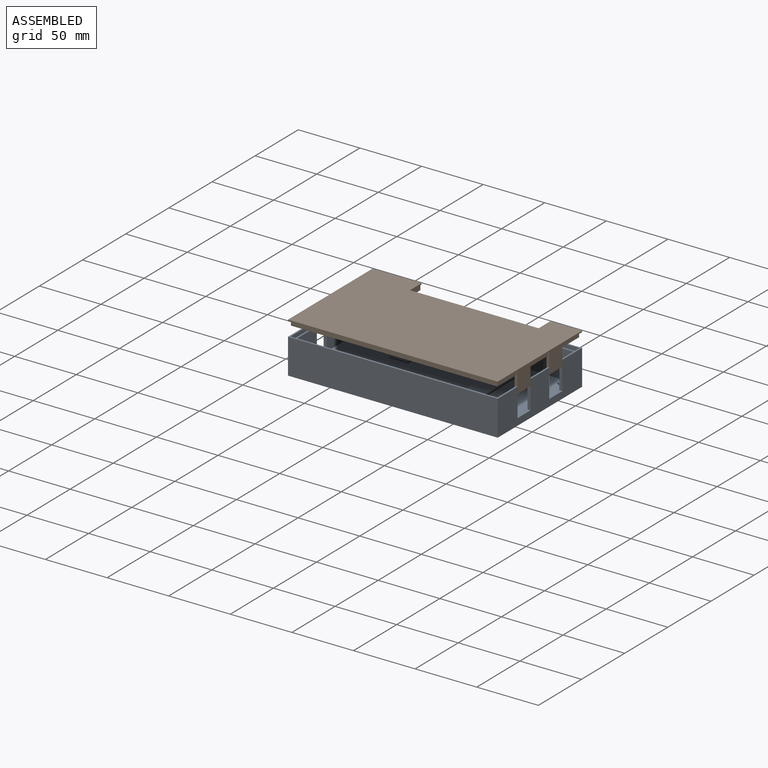
[diagram: assembled view]
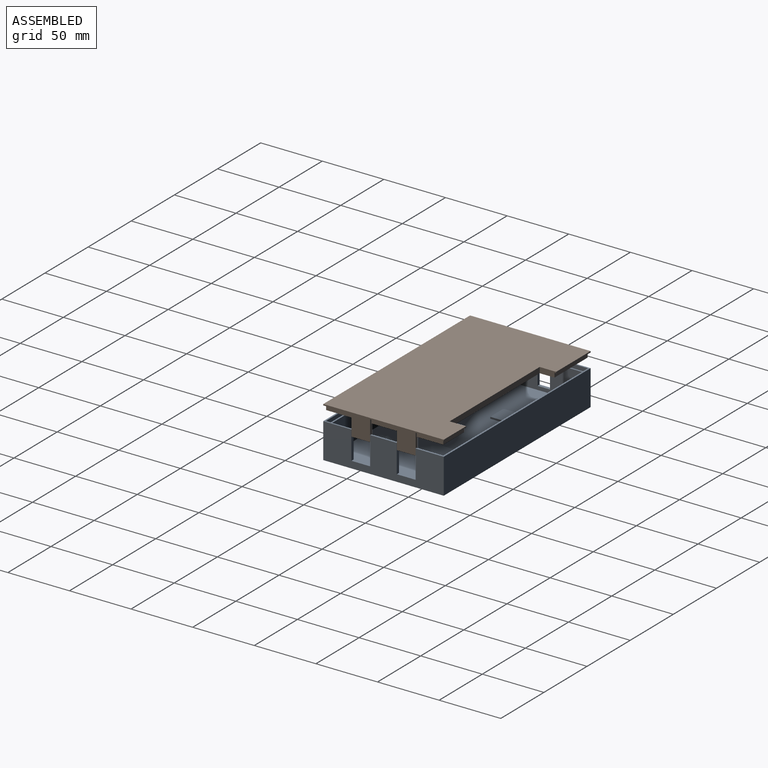
[diagram: assembled view, second angle]
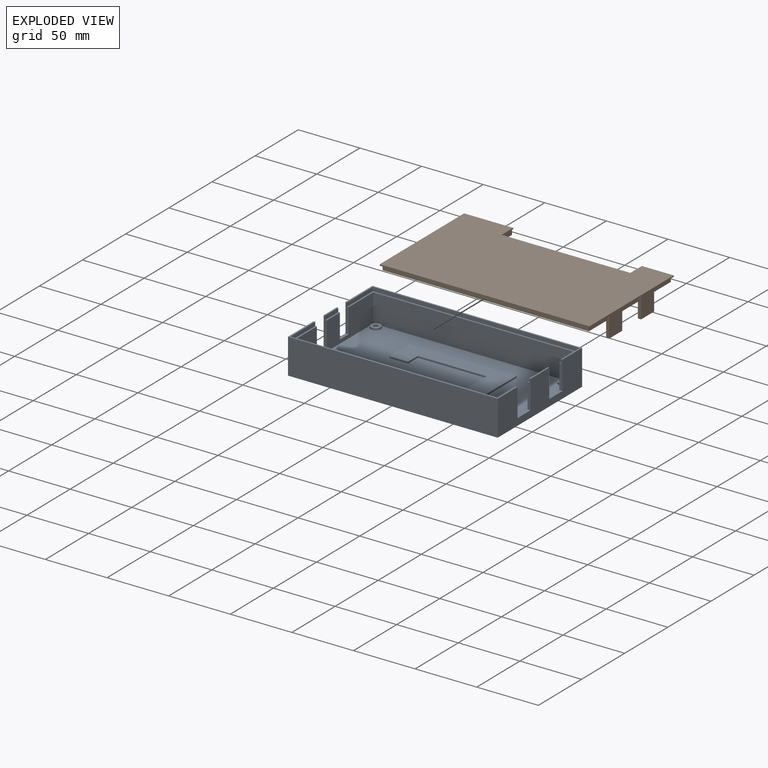
[diagram: exploded view]
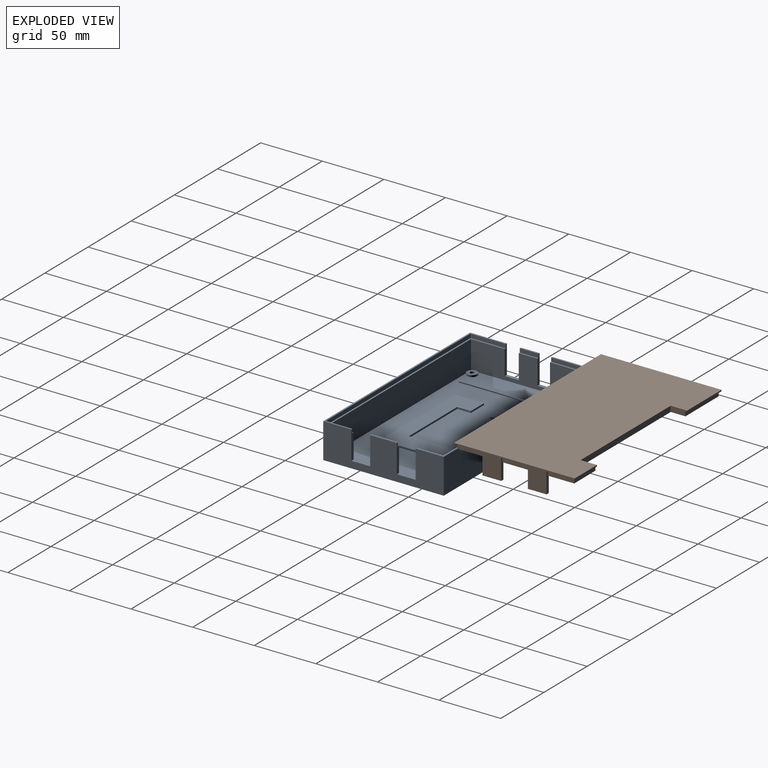
[diagram: exploded view, second angle]
ASSEMBLY  parts=2 mates=2
PART A: 67 faces, bbox 170.2x97.8x28.5 mm
  f0: plane 21.6x1.27mm, normal (0,0,1), area 27.4mm2, adj f5,f8,f14,f56
  f1: plane 92.71x22.83mm, normal (-1,0,0), area 1513.3mm2, adj f3,f4,f5,f6,f7,f8,f17,f53
  f2: plane 92.71x22.83mm, normal (1,0,0), area 1688.4mm2, adj f3,f4,f17,f47,f48,f49,f50,f51
  f3: plane 165.1x22.83mm, normal (0,1,0), area 3770mm2, adj f1,f2,f17,f57
  f4: plane 165.1x22.83mm, normal (0,-1,0), area 3770mm2, adj f1,f2,f17,f61
  f5: plane 22.98x2.54mm, normal (0,1,0), area 54.3mm2, adj f0,f1,f14,f53,f55,f56
  f6: plane 22.98x2.54mm, normal (0,-1,0), area 54.3mm2, adj f1,f9,f14,f53,f61,f62
  f7: plane 22.98x2.54mm, normal (0,1,0), area 54.3mm2, adj f1,f11,f14,f54,f57,f58
  f8: plane 22.98x2.54mm, normal (0,-1,0), area 54.3mm2, adj f0,f1,f14,f54,f55,f56
  f9: plane 170.18x31.16mm, normal (0,0,1), area 279.8mm2, adj f6,f12,f14,f15,f52,f62,f63,f64
  f10: plane 15.23x1.27mm, normal (0,0,1), area 19.4mm2, adj f12,f49,f51,f65
  f11: plane 170.18x29.82mm, normal (0,0,1), area 281.5mm2, adj f7,f12,f13,f14,f48,f58,f59,f60
  f12: plane 97.79x28.55mm, normal (-1,0,0), area 2294.7mm2, adj f9,f10,f11,f13,f15,f16,f47,f48
  f13: plane 170.18x28.55mm, normal (0,-1,0), area 4858.6mm2, adj f11,f12,f14,f16
  f14: plane 97.79x28.55mm, normal (1,0,0), area 2091.4mm2, adj f0,f5,f6,f7,f8,f9,f11,f13
  f15: plane 170.18x28.55mm, normal (0,1,0), area 4858.6mm2, adj f9,f12,f14,f16
  f16: plane 170.18x97.79mm, normal (0,0,-1), area 16641.9mm2, adj f12,f13,f14,f15
  f17: plane 165.1x92.71mm, normal (0,0,1), area 12043.4mm2, adj f1,f2,f3,f4,f19,f23,f27,f31
  f18: cylinder r=1.75mm len=3.49mm, axis (0,0,-1), area 15.3mm2, adj f20,f21
  f19: cylinder r=4.13mm len=8.25mm, axis (0,0,-1), area 36.2mm2, adj f17,f20
  f20: plane 8.25x8.25mm, normal (0,0,1), area 43.9mm2, adj f18,f19
  f21: plane 3.49x3.49mm, normal (0,0,1), area 9.6mm2, adj f18
  f22: cylinder r=1.75mm len=3.49mm, axis (0,0,-1), area 15.3mm2, adj f24,f25
  f23: cylinder r=4.13mm len=8.26mm, axis (0,0,-1), area 36.2mm2, adj f17,f24
  f24: plane 8.26x8.26mm, normal (0,0,1), area 43.9mm2, adj f22,f23
  f25: plane 3.49x3.49mm, normal (0,0,1), area 9.6mm2, adj f22
  f26: cylinder r=1.75mm len=3.49mm, axis (0,0,-1), area 15.3mm2, adj f28,f29
  f27: cylinder r=4.13mm len=8.26mm, axis (0,0,-1), area 36.2mm2, adj f17,f28
  f28: plane 8.26x8.26mm, normal (0,0,1), area 43.9mm2, adj f26,f27
  f29: plane 3.49x3.49mm, normal (0,0,1), area 9.6mm2, adj f26
  f30: cylinder r=1.75mm len=3.49mm, axis (0,0,-1), area 15.3mm2, adj f32,f33
  f31: cylinder r=4.13mm len=8.26mm, axis (0,0,-1), area 36.2mm2, adj f17,f32
  f32: plane 8.26x8.26mm, normal (0,0,1), area 43.9mm2, adj f30,f31
  f33: plane 3.49x3.49mm, normal (0,0,1), area 9.6mm2, adj f30
  f34: plane 38.1x1.4mm, normal (-1,0,0), area 53.2mm2, adj f17,f35,f45,f46
  f35: plane 55.88x1.4mm, normal (0,1,0), area 78.1mm2, adj f17,f34,f36,f46
  f36: plane 11.11x1.4mm, normal (1,0,0), area 15.5mm2, adj f17,f35,f37,f46
  f37: plane 15.18x1.4mm, normal (0,1,0), area 21.2mm2, adj f17,f36,f38,f46
  f38: plane 23.24x1.4mm, normal (-1,0,0), area 32.5mm2, adj f17,f37,f39,f46
  f39: plane 87.05x1.4mm, normal (0,-1,0), area 121.6mm2, adj f17,f38,f40,f46
  f40: plane 62.23x1.4mm, normal (1,0,0), area 86.9mm2, adj f17,f39,f41,f46
  f41: plane 87.05x1.4mm, normal (0,1,0), area 121.6mm2, adj f17,f40,f42,f46
  f42: plane 23.25x1.4mm, normal (-1,0,0), area 32.5mm2, adj f17,f41,f43,f46
  f43: plane 15.18x1.4mm, normal (0,-1,0), area 21.2mm2, adj f17,f42,f44,f46
  f44: plane 11.25x1.4mm, normal (1,0,0), area 15.7mm2, adj f17,f43,f45,f46
  f45: plane 55.88x1.4mm, normal (0,-1,0), area 78.1mm2, adj f17,f34,f44,f46
  f46: plane 87.05x62.23mm, normal (0,0,1), area 3048.9mm2, adj f34,f35,f36,f37,f38,f39,f40,f41
  f47: plane 11.43x2.54mm, normal (0,0,1), area 29mm2, adj f2,f12,f48,f49
  f48: plane 23.03x2.54mm, normal (0,1,0), area 54.5mm2, adj f2,f11,f12,f47,f57,f59
  f49: plane 23.03x2.54mm, normal (0,-1,0), area 54.5mm2, adj f2,f10,f12,f47,f65,f66
  f50: plane 10.16x2.54mm, normal (0,0,1), area 25.8mm2, adj f2,f12,f51,f52
  f51: plane 23.03x2.54mm, normal (0,1,0), area 54.5mm2, adj f2,f10,f12,f50,f65,f66
  f52: plane 23.03x2.54mm, normal (0,-1,0), area 54.5mm2, adj f2,f9,f12,f50,f61,f63
  f53: plane 15.24x2.54mm, normal (0,0,1), area 38.7mm2, adj f1,f5,f6,f14
  f54: plane 15.24x2.54mm, normal (0,0,1), area 38.7mm2, adj f1,f7,f8,f14
  f55: plane 21.6x1.27mm, normal (0,0,1), area 27.5mm2, adj f1,f5,f8,f56
  f56: plane 21.6x3.18mm, normal (-1,0,0), area 68.6mm2, adj f0,f5,f8,f55
  f57: plane 167.64x28.54mm, normal (0,0,1), area 271.7mm2, adj f1,f2,f3,f7,f48,f58,f59,f60
  f58: plane 21.58x3.18mm, normal (-1,0,0), area 68.5mm2, adj f7,f11,f57,f60
  f59: plane 28.54x3.18mm, normal (1,0,0), area 90.6mm2, adj f11,f48,f57,f60
  f60: plane 167.64x3.18mm, normal (0,1,0), area 532.3mm2, adj f11,f57,f58,f59
  f61: plane 167.64x29.9mm, normal (0,0,1), area 276.7mm2, adj f1,f2,f4,f6,f52,f62,f63,f64
  f62: plane 21.59x3.18mm, normal (-1,0,0), area 68.5mm2, adj f6,f9,f61,f64
  f63: plane 29.9x3.18mm, normal (1,0,0), area 94.9mm2, adj f9,f52,f61,f64
  f64: plane 167.64x3.18mm, normal (0,-1,0), area 532.3mm2, adj f9,f61,f62,f63
  f65: plane 15.23x3.18mm, normal (1,0,0), area 48.3mm2, adj f10,f49,f51,f66
  f66: plane 15.23x1.27mm, normal (0,0,1), area 19.3mm2, adj f2,f49,f51,f65
PART B: 53 faces, bbox 170.2x97.8x20.8 mm
  f0: plane 39.89x31.26mm, normal (0,0,1), area 97mm2, adj f1,f11,f12,f20,f21,f49
  f1: plane 29.87x3.56mm, normal (-1,0,0), area 106.2mm2, adj f0,f2,f20,f49
  f2: plane 167.39x95mm, normal (0,0,1), area 11817.6mm2, adj f1,f4,f6,f8,f16,f17,f18,f19
  f3: plane 15.33x1.4mm, normal (0,0,1), area 21.4mm2, adj f4,f11,f47,f51
  f4: plane 15.33x3.56mm, normal (-1,0,0), area 54.5mm2, adj f2,f3,f47,f51
  f5: plane 21.7x1.4mm, normal (0,0,1), area 30.4mm2, adj f6,f13,f39,f41
  f6: plane 21.7x3.56mm, normal (1,0,0), area 77.2mm2, adj f2,f5,f39,f41
  f7: plane 170.18x29.82mm, normal (0,0,1), area 309.3mm2, adj f8,f11,f13,f14,f18,f19,f37,f46
  f8: plane 21.56x3.56mm, normal (1,0,0), area 76.7mm2, adj f2,f7,f18,f37
  f9: plane 25.9x1.02mm, normal (0,-1,0), area 26.3mm2, adj f10,f13,f15,f29
  f10: plane 25.9x22.85mm, normal (0,0,1), area 65.9mm2, adj f9,f13,f16,f17,f29,f43
  f11: plane 97.79x20.83mm, normal (-1,0,0), area 459.8mm2, adj f0,f3,f7,f12,f14,f15,f45,f46
  f12: plane 39.89x1.02mm, normal (0,-1,0), area 40.5mm2, adj f0,f11,f15,f21
  f13: plane 97.79x17.78mm, normal (1,0,0), area 606.9mm2, adj f5,f7,f9,f10,f14,f15,f37,f38
  f14: plane 170.18x1.02mm, normal (0,1,0), area 172.9mm2, adj f7,f11,f13,f15
  f15: plane 170.18x97.79mm, normal (0,0,-1), area 15247.8mm2, adj f9,f11,f12,f13,f14,f21,f22,f29
  f16: plane 24.5x3.56mm, normal (0,-1,0), area 87.1mm2, adj f2,f10,f17,f29
  f17: plane 21.46x3.56mm, normal (1,0,0), area 76.3mm2, adj f2,f10,f16,f43
  f18: plane 167.39x3.56mm, normal (0,1,0), area 595.2mm2, adj f2,f7,f8,f19
  f19: plane 28.41x3.56mm, normal (-1,0,0), area 101mm2, adj f2,f7,f18,f46
  f20: plane 38.49x3.56mm, normal (0,-1,0), area 136.9mm2, adj f0,f1,f2,f21
  f21: plane 13.35x4.57mm, normal (1,0,0), area 56.1mm2, adj f0,f2,f12,f15,f20,f22
  f22: plane 104.4x4.57mm, normal (0,-1,0), area 477.3mm2, adj f2,f15,f21,f29
  f23: cylinder r=26.67mm len=53.34mm, axis (0,0,-1), area 491.4mm2, adj f2,f24,f30,f35
  f24: plane 20.65x3.56mm, normal (0,-1,0), area 73.4mm2, adj f2,f23,f25,f35
  f25: plane 27.93x3.56mm, normal (-1,0,0), area 99.3mm2, adj f2,f24,f30,f35
  f26: cylinder r=1.75mm len=3.56mm, axis (0,0,-1), area 39mm2, adj f2,f32
  f27: cylinder r=1.75mm len=3.56mm, axis (0,0,-1), area 39mm2, adj f2,f33
  f28: cylinder r=1.75mm len=3.56mm, axis (0,0,-1), area 39mm2, adj f2,f34
  f29: plane 13.35x4.57mm, normal (-1,0,0), area 56.1mm2, adj f2,f9,f10,f15,f16,f22
  f30: plane 20.65x3.56mm, normal (0,1,0), area 73.4mm2, adj f2,f23,f25,f35
  f31: cylinder r=1.75mm len=3.56mm, axis (0,0,-1), area 39mm2, adj f2,f36
  f32: plane 3.49x3.49mm, normal (0,0,1), area 9.6mm2, adj f26
  f33: plane 3.49x3.49mm, normal (0,0,1), area 9.6mm2, adj f27
  f34: plane 3.49x3.49mm, normal (0,0,1), area 9.6mm2, adj f28
  f35: plane 70.05x53.34mm, normal (0,0,1), area 2736.7mm2, adj f23,f24,f25,f30
  f36: plane 3.49x3.49mm, normal (0,0,1), area 9.6mm2, adj f31
  f37: plane 16.76x2.54mm, normal (0,1,0), area 38.5mm2, adj f2,f7,f8,f13,f38,f40
  f38: plane 15.14x2.54mm, normal (0,0,1), area 38.5mm2, adj f13,f37,f39,f40
  f39: plane 16.76x2.54mm, normal (0,-1,0), area 38.5mm2, adj f2,f5,f6,f13,f38,f40
  f40: plane 15.14x13.21mm, normal (-1,0,0), area 199.9mm2, adj f2,f37,f38,f39
  f41: plane 16.76x2.54mm, normal (0,1,0), area 38.5mm2, adj f2,f5,f6,f13,f42,f44
  f42: plane 15.14x2.54mm, normal (0,0,1), area 38.5mm2, adj f13,f41,f43,f44
  f43: plane 16.76x2.54mm, normal (0,-1,0), area 38.5mm2, adj f2,f10,f13,f17,f42,f44
  f44: plane 15.14x13.21mm, normal (-1,0,0), area 199.9mm2, adj f2,f41,f42,f43
  f45: plane 11.33x2.54mm, normal (0,0,1), area 28.8mm2, adj f11,f46,f47,f48
  f46: plane 14.22x2.54mm, normal (0,1,0), area 32.1mm2, adj f2,f7,f11,f19,f45,f48
  f47: plane 14.22x2.54mm, normal (0,-1,0), area 32.1mm2, adj f2,f3,f4,f11,f45,f48
  f48: plane 11.33x10.67mm, normal (1,0,0), area 120.9mm2, adj f2,f45,f46,f47
  f49: plane 19.81x2.54mm, normal (0,-1,0), area 46.3mm2, adj f0,f1,f2,f11,f50,f52
  f50: plane 10.06x2.54mm, normal (0,0,1), area 25.5mm2, adj f11,f49,f51,f52
  f51: plane 19.81x2.54mm, normal (0,1,0), area 46.3mm2, adj f2,f3,f4,f11,f50,f52
  f52: plane 16.26x10.06mm, normal (1,0,0), area 163.5mm2, adj f2,f49,f50,f51
PLACE A t=(-94.94,85.52,7.93)mm
PLACE B rot(axis=(1,0,0),180deg) t=(-94.94,85.77,77.56)mm
MATE planar A.f13 <-> B.f14  axis (0,-1,0) through (-9.85,-25.99,22.2)mm
MATE planar B.f13 <-> A.f14  axis (1,0,0) through (-9.85,-25.99,49.01)mm
